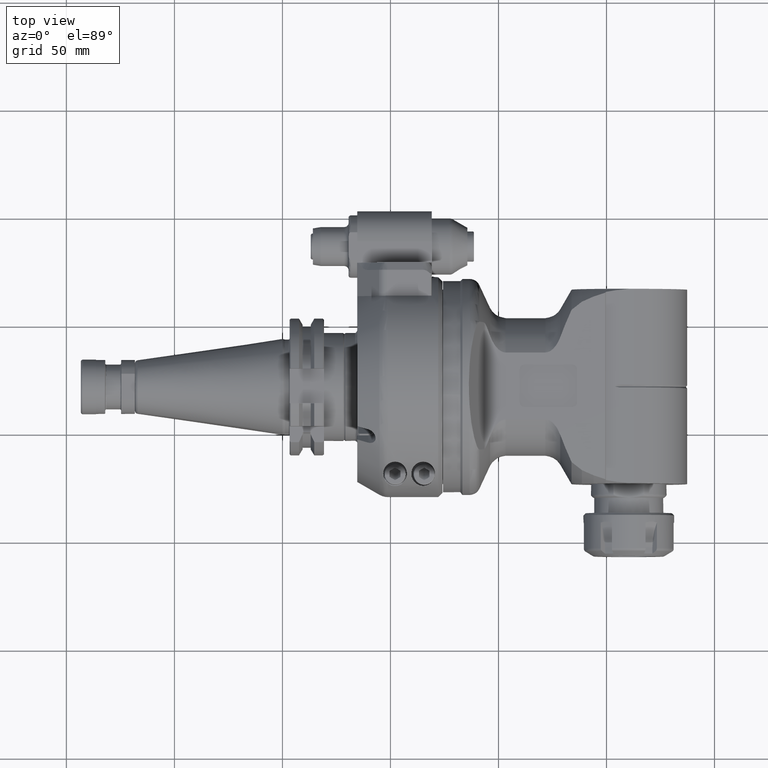
[diagram: clean part render]
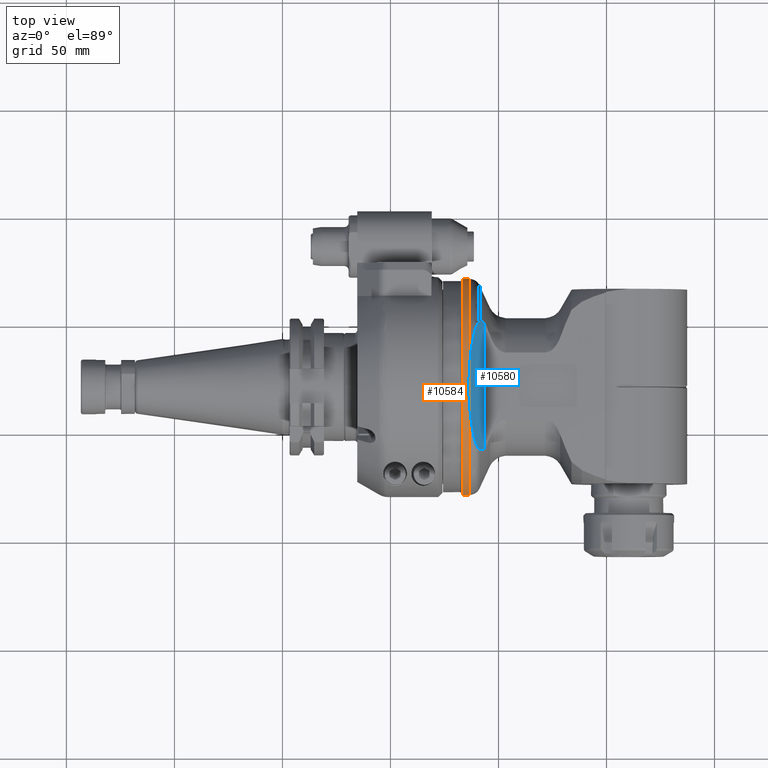
[diagram: same view with the hole feature highlighted: cylindrical wall and planar end face, labeled with their STEP entity ids]
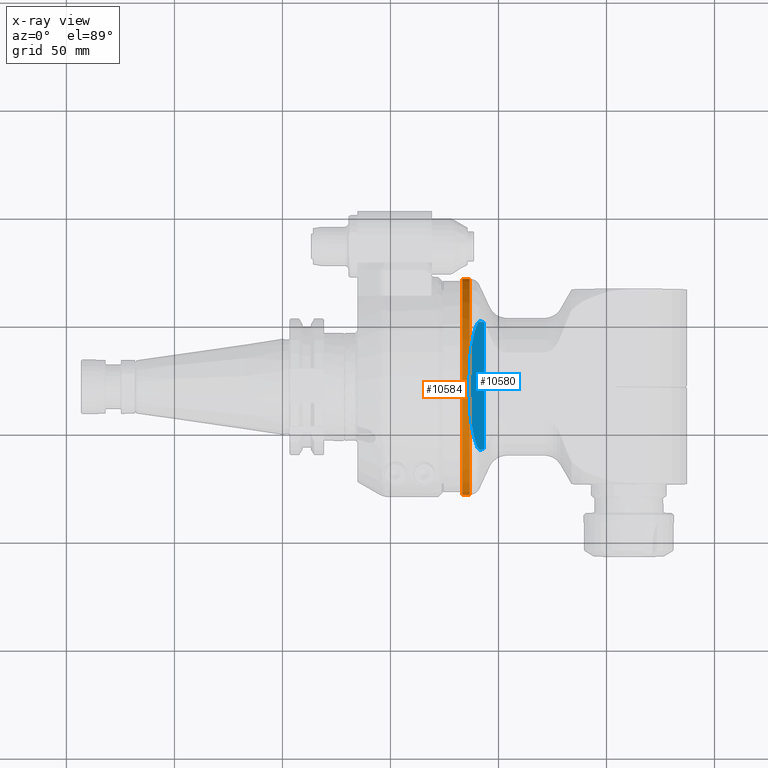
[diagram: x-ray of the same camera — body ghosted, the hole faces saturated]
A machine part, top view. The highlighted faces form one hole feature of diameter 100 mm: the cylindrical wall (entity #10584, orange) and its adjacent planar end face (entity #10580, blue) — they share a circular edge in the B-rep.
The next image is the same camera in x-ray (body ghosted, the hole faces saturated) — the bore reads through the body.
Wall:
#26=ELLIPSE('',#11599,53.2088886237962,50.);
#29=ELLIPSE('',#11605,53.2088886237962,50.);
#1262=FACE_OUTER_BOUND('',#1948,.T.);
#1948=EDGE_LOOP('',(#9214,#9215,#9216,#9217,#9218,#9219,#9220,#9221,#9222));
#2491=CIRCLE('',#11607,50.);
#2492=CIRCLE('',#11609,50.);
#2493=CIRCLE('',#11610,50.);
#2494=CIRCLE('',#11611,50.);
#2495=CIRCLE('',#11612,50.);
#3366=LINE('',#55860,#4024);
#4024=VECTOR('',#14044,50.);
#4987=VERTEX_POINT('',#55767);
#4988=VERTEX_POINT('',#55786);
#4991=VERTEX_POINT('',#55813);
#4992=VERTEX_POINT('',#55832);
#4993=VERTEX_POINT('',#55855);
#4994=VERTEX_POINT('',#55856);
#4995=VERTEX_POINT('',#55859);
#6437=EDGE_CURVE('',#4987,#4988,#26,.T.);
#6443=EDGE_CURVE('',#4991,#4992,#29,.T.);
#6445=EDGE_CURVE('',#4992,#4987,#2491,.T.);
#6446=EDGE_CURVE('',#4993,#4994,#2492,.T.);
#6447=EDGE_CURVE('',#4994,#4993,#2493,.T.);
#6448=EDGE_CURVE('',#4994,#4995,#3366,.T.);
#6449=EDGE_CURVE('',#4988,#4995,#2494,.T.);
#6450=EDGE_CURVE('',#4995,#4991,#2495,.T.);
#9214=ORIENTED_EDGE('',*,*,#6446,.F.);
#9215=ORIENTED_EDGE('',*,*,#6447,.F.);
#9216=ORIENTED_EDGE('',*,*,#6448,.T.);
#9217=ORIENTED_EDGE('',*,*,#6449,.F.);
#9218=ORIENTED_EDGE('',*,*,#6437,.F.);
#9219=ORIENTED_EDGE('',*,*,#6445,.F.);
#9220=ORIENTED_EDGE('',*,*,#6443,.F.);
#9221=ORIENTED_EDGE('',*,*,#6450,.F.);
#9222=ORIENTED_EDGE('',*,*,#6448,.F.);
#10069=CYLINDRICAL_SURFACE('',#11608,50.);
#10584=ADVANCED_FACE('',(#1262),#10069,.T.);
#11599=AXIS2_PLACEMENT_3D('',#55787,#14020,#14021);
#11605=AXIS2_PLACEMENT_3D('',#55833,#14032,#14033);
#11607=AXIS2_PLACEMENT_3D('',#55853,#14036,#14037);
#11608=AXIS2_PLACEMENT_3D('',#55854,#14038,#14039);
#11609=AXIS2_PLACEMENT_3D('',#55857,#14040,#14041);
#11610=AXIS2_PLACEMENT_3D('',#55858,#14042,#14043);
#11611=AXIS2_PLACEMENT_3D('',#55861,#14045,#14046);
#11612=AXIS2_PLACEMENT_3D('',#55862,#14047,#14048);
#14020=DIRECTION('center_axis',(0.939692620785897,0.,0.342020143325699));
#14021=DIRECTION('ref_axis',(0.342020143325699,0.,-0.939692620785897));
#14032=DIRECTION('center_axis',(0.939692620785897,0.,-0.342020143325699));
#14033=DIRECTION('ref_axis',(-0.342020143325699,0.,-0.939692620785897));
#14036=DIRECTION('center_axis',(1.,0.,0.));
#14037=DIRECTION('ref_axis',(0.,0.187279909699701,-0.982306589320703));
#14038=DIRECTION('center_axis',(-1.,0.,0.));
#14039=DIRECTION('ref_axis',(0.,1.,0.));
#14040=DIRECTION('center_axis',(-1.,0.,0.));
#14041=DIRECTION('ref_axis',(0.,1.,0.));
#14042=DIRECTION('center_axis',(-1.,0.,0.));
#14043=DIRECTION('ref_axis',(0.,1.,0.));
#14044=DIRECTION('',(1.,0.,0.));
#14045=DIRECTION('center_axis',(1.,0.,0.));
#14046=DIRECTION('ref_axis',(0.,-0.1872799096992,0.982306589320798));
#14047=DIRECTION('center_axis',(1.,0.,0.));
#14048=DIRECTION('ref_axis',(0.,-0.1872799096992,0.982306589320798));
#55767=CARTESIAN_POINT('',(16.31464863572,9.363995485014,49.11532946603));
#55786=CARTESIAN_POINT('',(16.31464863573,-9.363995485039,49.11532946603));
#55787=CARTESIAN_POINT('Origin',(34.1911666075347,0.,0.));
#55813=CARTESIAN_POINT('',(16.31464863572,-9.363995484987,-49.11532946603));
#55832=CARTESIAN_POINT('',(16.31464863573,9.36399548502,-49.11532946603));
#55833=CARTESIAN_POINT('Origin',(34.1911666075347,0.,0.));
#55853=CARTESIAN_POINT('Origin',(16.31464863572,0.,0.));
#55854=CARTESIAN_POINT('Origin',(54.606251,0.,0.));
#55855=CARTESIAN_POINT('',(13.,50.,0.));
#55856=CARTESIAN_POINT('',(13.,-50.,6.12323399573677E-15));
#55857=CARTESIAN_POINT('Origin',(13.,0.,0.));
#55858=CARTESIAN_POINT('Origin',(13.,0.,0.));
#55859=CARTESIAN_POINT('',(16.3146486357221,-50.,6.12323399573677E-15));
#55860=CARTESIAN_POINT('',(54.606251,-50.,6.12323399573677E-15));
#55861=CARTESIAN_POINT('Origin',(16.31464863572,0.,0.));
#55862=CARTESIAN_POINT('Origin',(16.31464863572,0.,0.));
End face:
#25=ELLIPSE('',#11597,50.3672702558906,29.5863002294594);
#26=ELLIPSE('',#11599,53.2088886237962,50.);
#27=ELLIPSE('',#11600,50.3672702558906,29.5863002294594);
#598=PLANE('',#11598);
#1258=FACE_OUTER_BOUND('',#1944,.T.);
#1944=EDGE_LOOP('',(#9192,#9193,#9194,#9195,#9196,#9197));
#2824=B_SPLINE_CURVE_WITH_KNOTS('',3,(#55768,#55769,#55770,#55771,#55772,
#55773,#55774,#55775,#55776,#55777,#55778,#55779,#55780,#55781,#55782,#55783,
#55784,#55785),.UNSPECIFIED.,.F.,.F.,(4,2,2,2,2,2,2,2,4),(7.09037016510969,
7.87701940297547,8.1777676130302,8.47851582308493,8.80354910515075,9.12858238721657,
9.39474930405345,9.46225514204568,9.47110878449787),.UNSPECIFIED.);
#2825=B_SPLINE_CURVE_WITH_KNOTS('',3,(#55789,#55790,#55791,#55792,#55793,
#55794,#55795,#55796,#55797,#55798,#55799,#55800,#55801,#55802,#55803,#55804,
#55805,#55806),.UNSPECIFIED.,.F.,.F.,(4,2,2,2,2,2,2,2,4),(-5.31609924693855,
-4.52945000907508,-4.22870179902035,-3.92795358896562,-3.6029203068998,
-3.27788702483398,-3.0117201079971,-2.94421427000487,-2.93536062682004),
 .UNSPECIFIED.);
#3343=LINE('',#55306,#4001);
#4001=VECTOR('',#13861,58.64425386089);
#4912=VERTEX_POINT('',#55288);
#4913=VERTEX_POINT('',#55305);
#4986=VERTEX_POINT('',#55763);
#4987=VERTEX_POINT('',#55767);
#4988=VERTEX_POINT('',#55786);
#4989=VERTEX_POINT('',#55788);
#6331=EDGE_CURVE('',#4912,#4913,#3343,.T.);
#6435=EDGE_CURVE('',#4912,#4986,#25,.T.);
#6436=EDGE_CURVE('',#4987,#4986,#2824,.T.);
#6437=EDGE_CURVE('',#4987,#4988,#26,.T.);
#6438=EDGE_CURVE('',#4988,#4989,#2825,.T.);
#6439=EDGE_CURVE('',#4989,#4913,#27,.T.);
#9192=ORIENTED_EDGE('',*,*,#6435,.T.);
#9193=ORIENTED_EDGE('',*,*,#6436,.F.);
#9194=ORIENTED_EDGE('',*,*,#6437,.T.);
#9195=ORIENTED_EDGE('',*,*,#6438,.T.);
#9196=ORIENTED_EDGE('',*,*,#6439,.T.);
#9197=ORIENTED_EDGE('',*,*,#6331,.F.);
#10580=ADVANCED_FACE('',(#1258),#598,.F.);
#11597=AXIS2_PLACEMENT_3D('',#55765,#14016,#14017);
#11598=AXIS2_PLACEMENT_3D('',#55766,#14018,#14019);
#11599=AXIS2_PLACEMENT_3D('',#55787,#14020,#14021);
#11600=AXIS2_PLACEMENT_3D('',#55807,#14022,#14023);
#13861=DIRECTION('',(5.827869456935E-14,-1.,-1.605390235018E-13));
#14016=DIRECTION('center_axis',(0.939692620785897,0.,0.342020143325699));
#14017=DIRECTION('ref_axis',(-0.342020143325699,1.39349996950756E-15,0.939692620785897));
#14018=DIRECTION('center_axis',(-0.939692620785897,0.,-0.342020143325699));
#14019=DIRECTION('ref_axis',(-0.342020143325699,0.,0.939692620785897));
#14020=DIRECTION('center_axis',(0.939692620785897,0.,0.342020143325699));
#14021=DIRECTION('ref_axis',(0.342020143325699,0.,-0.939692620785897));
#14022=DIRECTION('center_axis',(0.939692620785897,0.,0.342020143325699));
#14023=DIRECTION('ref_axis',(-0.342020143325699,1.39349996950756E-15,0.939692620785897));
#55288=CARTESIAN_POINT('',(23.04205971778,29.32212693045,30.6319194267));
#55305=CARTESIAN_POINT('',(23.04205971778,-29.32212693045,30.6319194267));
#55306=CARTESIAN_POINT('',(23.04205971778,29.32212693045,30.63191942671));
#55763=CARTESIAN_POINT('',(20.8461875004803,29.5857914026295,36.6650287600173));
#55765=CARTESIAN_POINT('Origin',(20.7451569433892,1.77635683940025E-14,
36.9426079340045));
#55766=CARTESIAN_POINT('Origin',(24.00000004808,0.,28.));
#55767=CARTESIAN_POINT('',(16.31464863572,9.363995485014,49.11532946603));
#55768=CARTESIAN_POINT('Ctrl Pts',(16.3146486357204,9.3639954850139,49.1153294660296));
#55769=CARTESIAN_POINT('Ctrl Pts',(16.5089546643471,12.1641130973679,48.5814780399138));
#55770=CARTESIAN_POINT('Ctrl Pts',(16.7970626489297,14.89268418197,47.7899078579087));
#55771=CARTESIAN_POINT('Ctrl Pts',(17.2779022721392,18.2335890551422,46.4688118507617));
#55772=CARTESIAN_POINT('Ctrl Pts',(17.4371534747882,19.2325943001654,46.0312727674626));
#55773=CARTESIAN_POINT('Ctrl Pts',(17.7890019232365,21.1784209335023,45.0645771002807));
#55774=CARTESIAN_POINT('Ctrl Pts',(17.9817805222086,22.1249619431992,44.5349222526509));
#55775=CARTESIAN_POINT('Ctrl Pts',(18.3765030725583,23.8625497430824,43.4504309586156));
#55776=CARTESIAN_POINT('Ctrl Pts',(18.6191470504405,24.8187856959593,42.7837721084178));
#55777=CARTESIAN_POINT('Ctrl Pts',(19.1522606848867,26.6017151146837,41.3190544357736));
#55778=CARTESIAN_POINT('Ctrl Pts',(19.4425932033076,27.4287590831444,40.5213723972789));
#55779=CARTESIAN_POINT('Ctrl Pts',(19.9758958164078,28.6338312433967,39.05613551005));
#55780=CARTESIAN_POINT('Ctrl Pts',(20.2825600158396,29.2079207962777,38.2135825467563));
#55781=CARTESIAN_POINT('Ctrl Pts',(20.6474740822835,29.5221310747005,37.2109893891602));
#55782=CARTESIAN_POINT('Ctrl Pts',(20.738047373882,29.5748920999617,36.9621413156877));
#55783=CARTESIAN_POINT('Ctrl Pts',(20.825030055835,29.5852601580148,36.7231583611383));
#55784=CARTESIAN_POINT('Ctrl Pts',(20.8354969146307,29.5858990840588,36.6944009029444));
#55785=CARTESIAN_POINT('Ctrl Pts',(20.8461875003858,29.5857914029915,36.6650287599816));
#55786=CARTESIAN_POINT('',(16.31464863573,-9.363995485039,49.11532946603));
#55787=CARTESIAN_POINT('Origin',(34.1911666075347,0.,0.));
#55788=CARTESIAN_POINT('',(20.8461875025902,-29.5857914047178,36.6650287525181));
#55789=CARTESIAN_POINT('Ctrl Pts',(16.3146486357221,-9.36399548503858,49.1153294660249));
#55790=CARTESIAN_POINT('Ctrl Pts',(16.5089546643488,-12.1641130973839,48.5814780399092));
#55791=CARTESIAN_POINT('Ctrl Pts',(16.7970626489307,-14.8926841819771,47.7899078579059));
#55792=CARTESIAN_POINT('Ctrl Pts',(17.2779022721392,-18.2335890551422,46.4688118507617));
#55793=CARTESIAN_POINT('Ctrl Pts',(17.4371534747882,-19.2325943001654,46.0312727674626));
#55794=CARTESIAN_POINT('Ctrl Pts',(17.7890019232365,-21.1784209335023,45.0645771002807));
#55795=CARTESIAN_POINT('Ctrl Pts',(17.9817805222086,-22.1249619431991,44.5349222526509));
#55796=CARTESIAN_POINT('Ctrl Pts',(18.3765030725583,-23.8625497430824,43.4504309586156));
#55797=CARTESIAN_POINT('Ctrl Pts',(18.6191470504405,-24.8187856959593,42.7837721084178));
#55798=CARTESIAN_POINT('Ctrl Pts',(19.1522606848867,-26.6017151146837,41.3190544357736));
#55799=CARTESIAN_POINT('Ctrl Pts',(19.4425932033076,-27.4287590831444,40.5213723972789));
#55800=CARTESIAN_POINT('Ctrl Pts',(19.9758958164078,-28.6338312433967,39.05613551005));
#55801=CARTESIAN_POINT('Ctrl Pts',(20.2825600158396,-29.2079207962777,38.2135825467563));
#55802=CARTESIAN_POINT('Ctrl Pts',(20.6474740822835,-29.5221310747005,37.2109893891602));
#55803=CARTESIAN_POINT('Ctrl Pts',(20.738047373882,-29.5748920999617,36.9621413156877));
#55804=CARTESIAN_POINT('Ctrl Pts',(20.8250300566696,-29.5852601581142,36.7231583588454));
#55805=CARTESIAN_POINT('Ctrl Pts',(20.8354969163632,-29.585899084164,36.6944008981844));
#55806=CARTESIAN_POINT('Ctrl Pts',(20.8461875030403,-29.5857914029647,36.6650287526884));
#55807=CARTESIAN_POINT('Origin',(20.7451569433892,1.77635683940025E-14,
36.9426079340045));